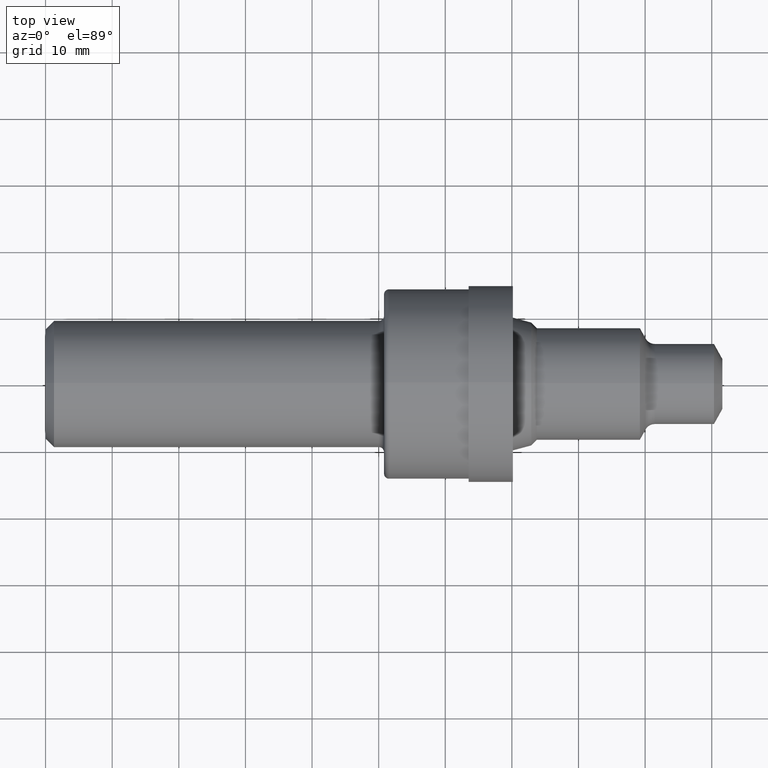
[diagram: clean part render]
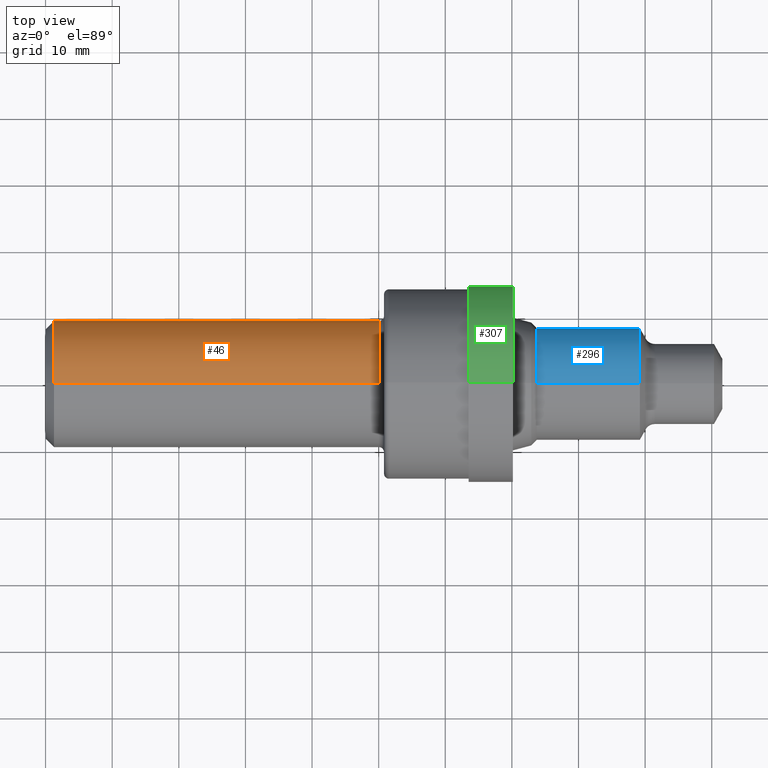
[diagram: same view with three faces highlighted in distinct colors, each labeled with its STEP entity id]
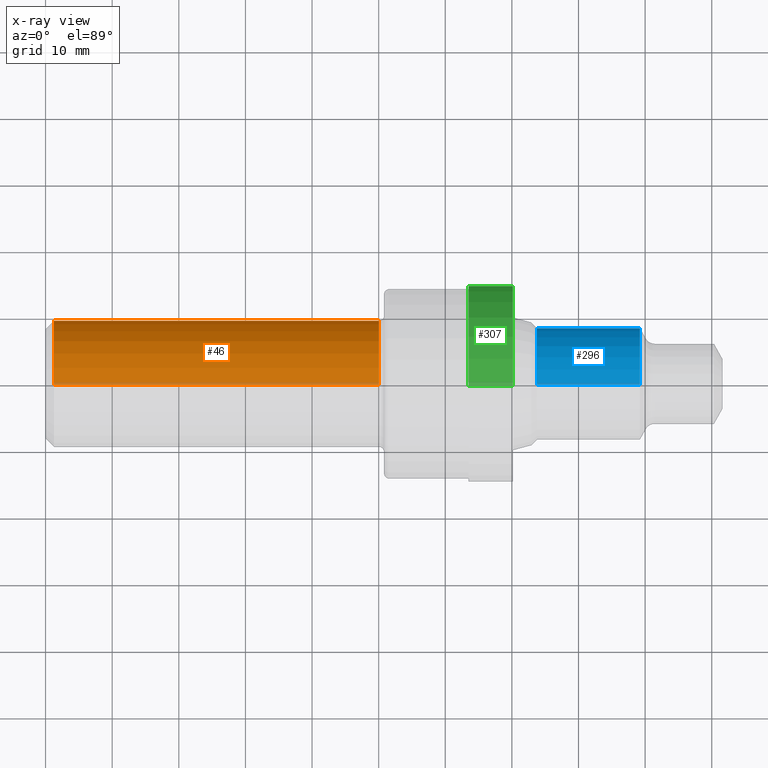
[diagram: x-ray of the same camera — body ghosted, the three highlighted faces saturated]
A machine part, top view with three faces highlighted in distinct colors.
The next image is the same camera in x-ray (body ghosted, the three faces saturated) — at least one of them is partly hidden behind the body in this view.
Their STEP definitions:

[orange] entity #46 — the highlighted cylindrical surface (partial cylindrical patch) has radius 9.5212 mm, axis along (-1, -0, -0).
#31 = EDGE_CURVE ( 'NONE', #664, #215, #213, .T. ) ;
#39 = FACE_OUTER_BOUND ( 'NONE', #248, .T. ) ;
#44 = DIRECTION ( 'NONE',  ( -1.000000000000000000, -0.0000000000000000000, -0.0000000000000000000 ) ) ;
#46 = ADVANCED_FACE ( 'NONE', ( #39 ), #364, .T. ) ;
#94 = ORIENTED_EDGE ( 'NONE', *, *, #238, .T. ) ;
#122 = LINE ( 'NONE', #300, #596 ) ;
#135 = VERTEX_POINT ( 'NONE', #603 ) ;
#182 = CIRCLE ( 'NONE', #341, 0.3748500000000005161 ) ;
#198 = CARTESIAN_POINT ( 'NONE',  ( 1.969999999999999973, 0.0000000000000000000, 0.0000000000000000000 ) ) ;
#213 = LINE ( 'NONE', #577, #463 ) ;
#215 = VERTEX_POINT ( 'NONE', #360 ) ;
#238 = EDGE_CURVE ( 'NONE', #135, #765, #122, .T. ) ;
#248 = EDGE_LOOP ( 'NONE', ( #342, #94, #547, #801 ) ) ;
#260 = CIRCLE ( 'NONE', #653, 0.3748500000000000165 ) ;
#265 = DIRECTION ( 'NONE',  ( -1.000000000000000000, -0.0000000000000000000, -0.0000000000000000000 ) ) ;
#287 = CARTESIAN_POINT ( 'NONE',  ( 1.969999999999999973, 0.0000000000000000000, 0.3748500000000005161 ) ) ;
#300 = CARTESIAN_POINT ( 'NONE',  ( 0.0000000000000000000, 4.590588526603856213E-17, -0.3748500000000002386 ) ) ;
#319 = EDGE_CURVE ( 'NONE', #664, #135, #182, .T. ) ;
#331 = DIRECTION ( 'NONE',  ( -1.000000000000000000, -0.0000000000000000000, -0.0000000000000000000 ) ) ;
#341 = AXIS2_PLACEMENT_3D ( 'NONE', #198, #781, #718 ) ;
#342 = ORIENTED_EDGE ( 'NONE', *, *, #319, .T. ) ;
#360 = CARTESIAN_POINT ( 'NONE',  ( 0.05000000000000000278, 4.590588526603853748E-17, 0.3748500000000000165 ) ) ;
#364 = CYLINDRICAL_SURFACE ( 'NONE', #716, 0.3748500000000002386 ) ;
#367 = EDGE_CURVE ( 'NONE', #215, #765, #260, .T. ) ;
#384 = DIRECTION ( 'NONE',  ( 0.0000000000000000000, 0.0000000000000000000, 1.000000000000000000 ) ) ;
#463 = VECTOR ( 'NONE', #583, 39.37007874015748143 ) ;
#547 = ORIENTED_EDGE ( 'NONE', *, *, #367, .F. ) ;
#577 = CARTESIAN_POINT ( 'NONE',  ( 0.0000000000000000000, 0.0000000000000000000, 0.3748500000000002386 ) ) ;
#583 = DIRECTION ( 'NONE',  ( -1.000000000000000000, -0.0000000000000000000, -0.0000000000000000000 ) ) ;
#596 = VECTOR ( 'NONE', #44, 39.37007874015748143 ) ;
#603 = CARTESIAN_POINT ( 'NONE',  ( 1.969999999999999973, 4.590588526603859294E-17, -0.3748500000000005161 ) ) ;
#611 = CARTESIAN_POINT ( 'NONE',  ( 0.05000000000000000278, 0.0000000000000000000, -0.3748500000000000165 ) ) ;
#653 = AXIS2_PLACEMENT_3D ( 'NONE', #844, #265, #384 ) ;
#662 = DIRECTION ( 'NONE',  ( 0.0000000000000000000, 0.0000000000000000000, 1.000000000000000000 ) ) ;
#664 = VERTEX_POINT ( 'NONE', #287 ) ;
#716 = AXIS2_PLACEMENT_3D ( 'NONE', #788, #331, #662 ) ;
#718 = DIRECTION ( 'NONE',  ( 0.0000000000000000000, 0.0000000000000000000, 1.000000000000000000 ) ) ;
#765 = VERTEX_POINT ( 'NONE', #611 ) ;
#781 = DIRECTION ( 'NONE',  ( -1.000000000000000000, -0.0000000000000000000, -0.0000000000000000000 ) ) ;
#788 = CARTESIAN_POINT ( 'NONE',  ( 0.0000000000000000000, 0.0000000000000000000, 0.0000000000000000000 ) ) ;
#801 = ORIENTED_EDGE ( 'NONE', *, *, #31, .F. ) ;
#844 = CARTESIAN_POINT ( 'NONE',  ( 0.05000000000000000278, 0.0000000000000000000, 0.0000000000000000000 ) ) ;

[blue] entity #296 — the highlighted cylindrical surface (partial cylindrical patch) has radius 8.4201 mm, axis along (-1, -0, -0).
#1 = LINE ( 'NONE', #33, #771 ) ;
#13 = CARTESIAN_POINT ( 'NONE',  ( 3.512000000000000011, 4.059704139173475521E-17, -0.3314999999999999059 ) ) ;
#16 = EDGE_LOOP ( 'NONE', ( #435, #323, #146, #344 ) ) ;
#33 = CARTESIAN_POINT ( 'NONE',  ( 0.0000000000000000000, 4.059704139173475521E-17, -0.3314999999999999059 ) ) ;
#51 = DIRECTION ( 'NONE',  ( 0.0000000000000000000, 0.0000000000000000000, 1.000000000000000000 ) ) ;
#55 = DIRECTION ( 'NONE',  ( 0.0000000000000000000, 0.0000000000000000000, 1.000000000000000000 ) ) ;
#96 = EDGE_CURVE ( 'NONE', #789, #509, #425, .T. ) ;
#99 = DIRECTION ( 'NONE',  ( 0.0000000000000000000, 0.0000000000000000000, 1.000000000000000000 ) ) ;
#101 = LINE ( 'NONE', #644, #491 ) ;
#146 = ORIENTED_EDGE ( 'NONE', *, *, #259, .F. ) ;
#244 = CARTESIAN_POINT ( 'NONE',  ( 2.903561487217438231, 0.0000000000000000000, 0.0000000000000000000 ) ) ;
#259 = EDGE_CURVE ( 'NONE', #524, #438, #529, .T. ) ;
#296 = ADVANCED_FACE ( 'NONE', ( #462 ), #351, .T. ) ;
#309 = DIRECTION ( 'NONE',  ( -1.000000000000000000, -0.0000000000000000000, -0.0000000000000000000 ) ) ;
#323 = ORIENTED_EDGE ( 'NONE', *, *, #764, .T. ) ;
#344 = ORIENTED_EDGE ( 'NONE', *, *, #817, .F. ) ;
#351 = CYLINDRICAL_SURFACE ( 'NONE', #679, 0.3314999999999999059 ) ;
#425 = CIRCLE ( 'NONE', #515, 0.3314999999999999059 ) ;
#435 = ORIENTED_EDGE ( 'NONE', *, *, #96, .T. ) ;
#438 = VERTEX_POINT ( 'NONE', #713 ) ;
#462 = FACE_OUTER_BOUND ( 'NONE', #16, .T. ) ;
#465 = CARTESIAN_POINT ( 'NONE',  ( 2.903561487217438231, 0.0000000000000000000, 0.3314999999999999059 ) ) ;
#481 = DIRECTION ( 'NONE',  ( -1.000000000000000000, -0.0000000000000000000, -0.0000000000000000000 ) ) ;
#491 = VECTOR ( 'NONE', #562, 39.37007874015748143 ) ;
#509 = VERTEX_POINT ( 'NONE', #13 ) ;
#515 = AXIS2_PLACEMENT_3D ( 'NONE', #804, #481, #99 ) ;
#524 = VERTEX_POINT ( 'NONE', #465 ) ;
#529 = CIRCLE ( 'NONE', #540, 0.3314999999999999059 ) ;
#540 = AXIS2_PLACEMENT_3D ( 'NONE', #244, #769, #55 ) ;
#562 = DIRECTION ( 'NONE',  ( -1.000000000000000000, -0.0000000000000000000, -0.0000000000000000000 ) ) ;
#620 = DIRECTION ( 'NONE',  ( -1.000000000000000000, -0.0000000000000000000, -0.0000000000000000000 ) ) ;
#623 = CARTESIAN_POINT ( 'NONE',  ( 3.512000000000000011, 0.0000000000000000000, 0.3314999999999999059 ) ) ;
#644 = CARTESIAN_POINT ( 'NONE',  ( 0.0000000000000000000, 0.0000000000000000000, 0.3314999999999999059 ) ) ;
#647 = CARTESIAN_POINT ( 'NONE',  ( 0.0000000000000000000, 0.0000000000000000000, 0.0000000000000000000 ) ) ;
#679 = AXIS2_PLACEMENT_3D ( 'NONE', #647, #309, #51 ) ;
#713 = CARTESIAN_POINT ( 'NONE',  ( 2.903561487217438231, 4.265208978650781218E-17, -0.3314999999999999059 ) ) ;
#764 = EDGE_CURVE ( 'NONE', #509, #438, #1, .T. ) ;
#769 = DIRECTION ( 'NONE',  ( -1.000000000000000000, -0.0000000000000000000, -0.0000000000000000000 ) ) ;
#771 = VECTOR ( 'NONE', #620, 39.37007874015748143 ) ;
#789 = VERTEX_POINT ( 'NONE', #623 ) ;
#804 = CARTESIAN_POINT ( 'NONE',  ( 3.512000000000000011, 0.0000000000000000000, 0.0000000000000000000 ) ) ;
#817 = EDGE_CURVE ( 'NONE', #789, #524, #101, .T. ) ;

[green] entity #307 — the highlighted cylindrical surface (partial cylindrical patch) has radius 14.7701 mm, axis along (-1, -0, -0).
#15 = CARTESIAN_POINT ( 'NONE',  ( 2.762000000000000011, 0.0000000000000000000, 0.5815000000000000169 ) ) ;
#25 = VECTOR ( 'NONE', #542, 39.37007874015748143 ) ;
#97 = AXIS2_PLACEMENT_3D ( 'NONE', #326, #136, #454 ) ;
#106 = DIRECTION ( 'NONE',  ( -1.000000000000000000, -0.0000000000000000000, -0.0000000000000000000 ) ) ;
#110 = CARTESIAN_POINT ( 'NONE',  ( 0.0000000000000000000, 0.0000000000000000000, 0.5815000000000000169 ) ) ;
#136 = DIRECTION ( 'NONE',  ( -1.000000000000000000, -0.0000000000000000000, -0.0000000000000000000 ) ) ;
#208 = EDGE_CURVE ( 'NONE', #565, #675, #211, .T. ) ;
#211 = LINE ( 'NONE', #110, #615 ) ;
#264 = VERTEX_POINT ( 'NONE', #834 ) ;
#270 = CYLINDRICAL_SURFACE ( 'NONE', #768, 0.5815000000000000169 ) ;
#276 = AXIS2_PLACEMENT_3D ( 'NONE', #614, #494, #548 ) ;
#307 = ADVANCED_FACE ( 'NONE', ( #424 ), #270, .T. ) ;
#326 = CARTESIAN_POINT ( 'NONE',  ( 2.500000000000000000, 0.0000000000000000000, 0.0000000000000000000 ) ) ;
#380 = DIRECTION ( 'NONE',  ( -1.000000000000000000, -0.0000000000000000000, -0.0000000000000000000 ) ) ;
#405 = ORIENTED_EDGE ( 'NONE', *, *, #208, .F. ) ;
#408 = EDGE_CURVE ( 'NONE', #675, #264, #586, .T. ) ;
#424 = FACE_OUTER_BOUND ( 'NONE', #766, .T. ) ;
#454 = DIRECTION ( 'NONE',  ( 0.0000000000000000000, 0.0000000000000000000, 1.000000000000000000 ) ) ;
#494 = DIRECTION ( 'NONE',  ( -1.000000000000000000, -0.0000000000000000000, -0.0000000000000000000 ) ) ;
#542 = DIRECTION ( 'NONE',  ( -1.000000000000000000, -0.0000000000000000000, -0.0000000000000000000 ) ) ;
#546 = CARTESIAN_POINT ( 'NONE',  ( 2.500000000000000000, 0.0000000000000000000, 0.5815000000000000169 ) ) ;
#548 = DIRECTION ( 'NONE',  ( 0.0000000000000000000, 0.0000000000000000000, 1.000000000000000000 ) ) ;
#565 = VERTEX_POINT ( 'NONE', #15 ) ;
#572 = DIRECTION ( 'NONE',  ( 0.0000000000000000000, 0.0000000000000000000, 1.000000000000000000 ) ) ;
#586 = CIRCLE ( 'NONE', #97, 0.5815000000000000169 ) ;
#599 = EDGE_CURVE ( 'NONE', #673, #264, #782, .T. ) ;
#601 = ORIENTED_EDGE ( 'NONE', *, *, #720, .T. ) ;
#613 = CIRCLE ( 'NONE', #276, 0.5815000000000000169 ) ;
#614 = CARTESIAN_POINT ( 'NONE',  ( 2.762000000000000011, 0.0000000000000000000, 0.0000000000000000000 ) ) ;
#615 = VECTOR ( 'NONE', #106, 39.37007874015748143 ) ;
#673 = VERTEX_POINT ( 'NONE', #799 ) ;
#675 = VERTEX_POINT ( 'NONE', #546 ) ;
#676 = CARTESIAN_POINT ( 'NONE',  ( 0.0000000000000000000, 7.121321137041858539E-17, -0.5815000000000000169 ) ) ;
#692 = ORIENTED_EDGE ( 'NONE', *, *, #408, .F. ) ;
#706 = CARTESIAN_POINT ( 'NONE',  ( 0.0000000000000000000, 0.0000000000000000000, 0.0000000000000000000 ) ) ;
#720 = EDGE_CURVE ( 'NONE', #565, #673, #613, .T. ) ;
#766 = EDGE_LOOP ( 'NONE', ( #601, #775, #692, #405 ) ) ;
#768 = AXIS2_PLACEMENT_3D ( 'NONE', #706, #380, #572 ) ;
#775 = ORIENTED_EDGE ( 'NONE', *, *, #599, .T. ) ;
#782 = LINE ( 'NONE', #676, #25 ) ;
#799 = CARTESIAN_POINT ( 'NONE',  ( 2.762000000000000011, 7.121321137041858539E-17, -0.5815000000000000169 ) ) ;
#834 = CARTESIAN_POINT ( 'NONE',  ( 2.500000000000000000, 7.121321137041858539E-17, -0.5815000000000000169 ) ) ;